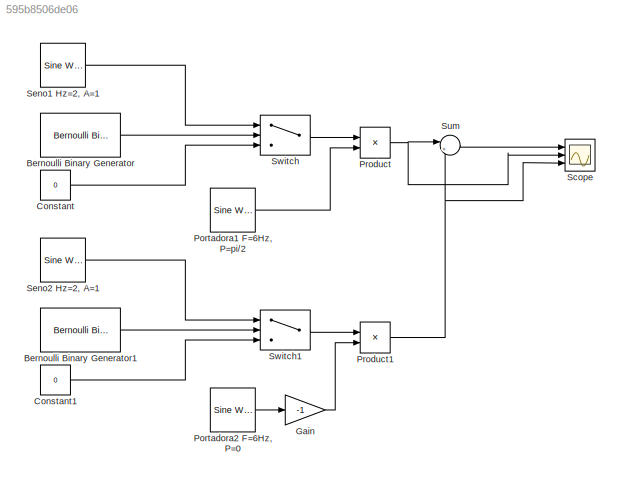
MODEL slx_595b8506de06
KIND model
CONFIG AbsTol = auto
CONFIG EnableMultiTasking = off
CONFIG FixedStep = auto
CONFIG MaxStep = auto
CONFIG MinStep = auto
CONFIG RelTol = 1e-3
CONFIG SampleTimeConstraint = Unconstrained
CONFIG SolverName = VariableStepAuto
CONFIG StartTime = 0.0
CONFIG StopTime = 10.0
BLOCK [Reference] Bernoulli Binary Generator  REF=commrandsrc3/Bernoulli Binary
Generator
  Ports = [0, 1]
  SourceBlock = commrandsrc3/Bernoulli Binary\nGenerator
  SourceProductBaseCode = CM
  SourceType = Bernoulli Binary Generator
BLOCK [Reference] Bernoulli Binary Generator1  REF=commrandsrc3/Bernoulli Binary
Generator
  Ports = [0, 1]
  SourceBlock = commrandsrc3/Bernoulli Binary\nGenerator
  SourceProductBaseCode = CM
  SourceType = Bernoulli Binary Generator
BLOCK [Constant] Constant
  Value = 0
BLOCK [Constant] Constant1
  Value = 0
BLOCK [Gain] Gain
  Gain = -1
BLOCK [Reference] Portadora1 F=6Hz, P=pi//2  REF=dspsrcs4/Sine Wave
  Ports = [0, 1]
  SourceBlock = dspsrcs4/Sine Wave
  SourceProductBaseCode = DS
  SourceType = Sine Wave
BLOCK [Reference] Portadora2 F=6Hz, P=0  REF=dspsrcs4/Sine Wave
  Ports = [0, 1]
  SourceBlock = dspsrcs4/Sine Wave
  SourceProductBaseCode = DS
  SourceType = Sine Wave
BLOCK [Product] Product
  Ports = [2, 1]
BLOCK [Product] Product1
  Ports = [2, 1]
BLOCK [Scope] Scope
  Floating = off
  NumInputPorts = 3
  Ports = [3]
  ScopeSpecificationString = Simulink.scopes.TimeScopeBlockCfg('CurrentConfiguration', extmgr.ConfigurationSet(extmgr.Configuration('Core','General UI',true),extmgr.Configuration('Core','Source UI',true),extmgr.Configuration('Sources','WiredSimulink',true),extmgr.Configuration('Visuals','Time Domain',true,'SerializedDisplays',{struct('MinYLimReal','-1.34856','MaxYLimReal','1.67297','YLabelReal','','MinYLimMag','0.00000','MaxY...<+2605ch>
BLOCK [Reference] Seno1 Hz=2, A=1  REF=dspsrcs4/Sine Wave
  Ports = [0, 1]
  SourceBlock = dspsrcs4/Sine Wave
  SourceProductBaseCode = DS
  SourceType = Sine Wave
BLOCK [Reference] Seno2 Hz=2, A=1  REF=dspsrcs4/Sine Wave
  Ports = [0, 1]
  SourceBlock = dspsrcs4/Sine Wave
  SourceProductBaseCode = DS
  SourceType = Sine Wave
BLOCK [Sum] Sum
  Inputs = |++
  Ports = [2, 1]
BLOCK [Switch] Switch
  Criteria = u2 > Threshold
  InputSameDT = off
  SaturateOnIntegerOverflow = off
BLOCK [Switch] Switch1
  Criteria = u2 > Threshold
  InputSameDT = off
  SaturateOnIntegerOverflow = off
LINE Bernoulli Binary Generator1:1 -> Switch1:2
LINE Bernoulli Binary Generator:1 -> Switch:2
LINE Constant1:1 -> Switch1:3
LINE Constant:1 -> Switch:3
LINE Gain:1 -> Product1:2
LINE Portadora1 F=6Hz, P=pi//2:1 -> Product:2
LINE Portadora2 F=6Hz, P=0:1 -> Gain:1
NET Product1:1 -> Scope:3, Sum:2
NET Product:1 -> Scope:2, Sum:1
LINE Seno1 Hz=2, A=1:1 -> Switch:1
LINE Seno2 Hz=2, A=1:1 -> Switch1:1
LINE Sum:1 -> Scope:1
LINE Switch1:1 -> Product1:1
LINE Switch:1 -> Product:1
note: NET lines group one-source signal fan-out (src -> all destinations, sorted); 1:1 wires keep LINE
